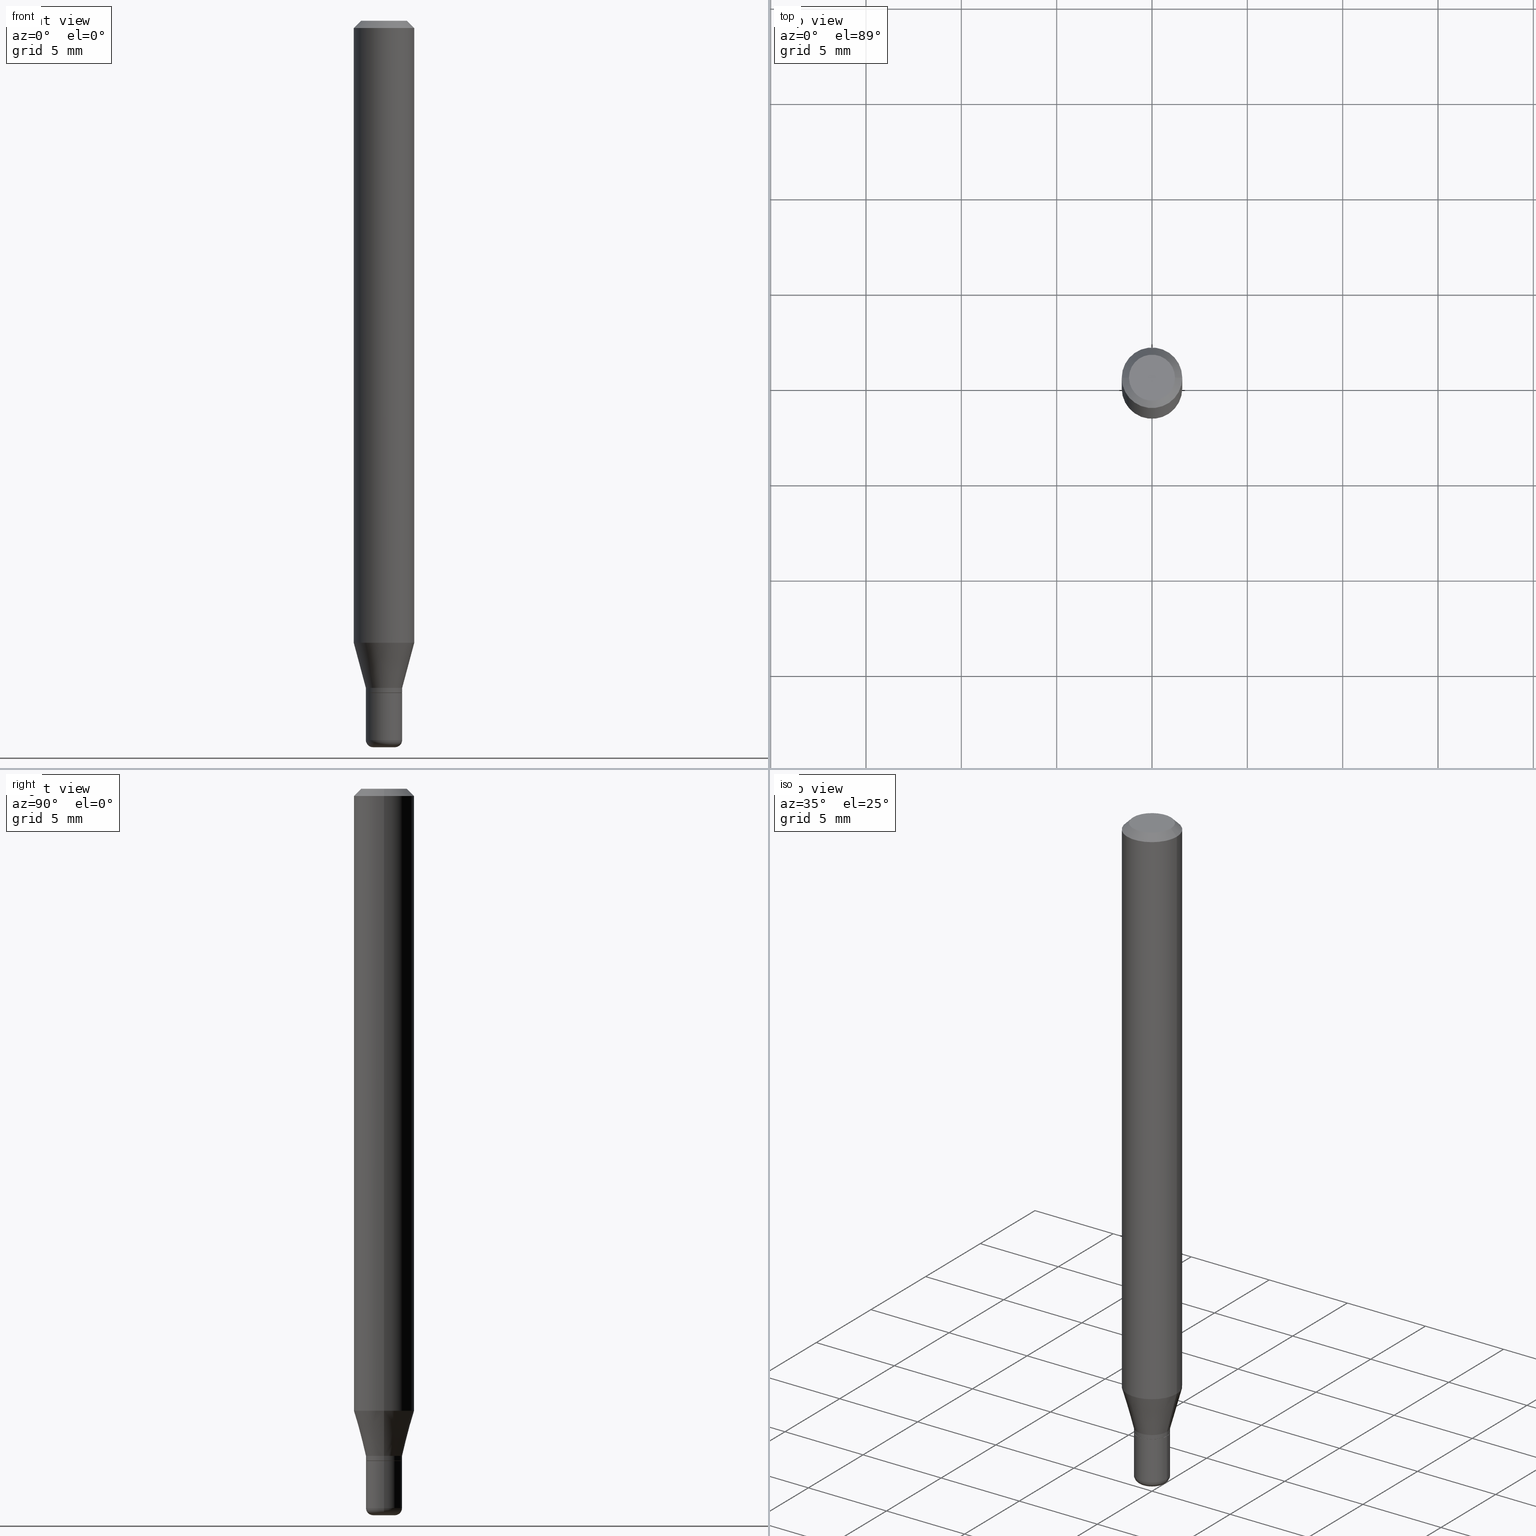
[diagram: canonical four-view strip — front | top / right | iso, engineering-drawing reading convention]
A machine part, canonical four-view strip (front | top / right | iso — engineering-drawing reading convention). The complete STEP part file that produces these views, byte-faithful:
ISO-10303-21;
HEADER;
FILE_DESCRIPTION (( 'STEP AP203' ),
    '1' );
FILE_NAME ('09180.STEP',
    '2024-02-29T23:03:46',
    ( '' ),
    ( '' ),
    'SwSTEP 2.0',
    'SolidWorks 2023',
    '' );
FILE_SCHEMA (( 'CONFIG_CONTROL_DESIGN' ));
ENDSEC;

DATA;
#1 = DIRECTION ( 'NONE',  ( 1.000000000000000000, -6.982962677686266711E-15, 4.876176775795935793E-29 ) ) ;
#2 = ORIENTED_EDGE ( 'NONE', *, *, #321, .F. ) ;
#3 = EDGE_CURVE ( 'NONE', #268, #397, #286, .T. ) ;
#4 = ORIENTED_EDGE ( 'NONE', *, *, #448, .T. ) ;
#5 = AXIS2_PLACEMENT_3D ( 'NONE', #476, #66, #124 ) ;
#6 = VECTOR ( 'NONE', #492, 39.37007874015748143 ) ;
#7 = AXIS2_PLACEMENT_3D ( 'NONE', #380, #429, #418 ) ;
#8 = ORIENTED_EDGE ( 'NONE', *, *, #173, .T. ) ;
#9 = ORIENTED_EDGE ( 'NONE', *, *, #304, .T. ) ;
#10 = EDGE_CURVE ( 'NONE', #397, #241, #246, .T. ) ;
#11 = CIRCLE ( 'NONE', #368, 0.02250000000000000264 ) ;
#12 = CARTESIAN_POINT ( 'NONE',  ( 0.000000000000000000, 0.000000000000000000, 0.000000000000000000 ) ) ;
#13 = DIRECTION ( 'NONE',  ( 1.000000000000000000, -6.982962677686266711E-15, 4.876176775795935793E-29 ) ) ;
#14 = DIRECTION ( 'NONE',  ( -0.7071067811866199593, 7.493145998870616062E-15, 0.7071067811864750752 ) ) ;
#15 = EDGE_CURVE ( 'NONE', #130, #268, #41, .T. ) ;
#16 = DIRECTION ( 'NONE',  ( -2.445468806185136597E-29, 3.491481338843145583E-15, 1.000000000000000000 ) ) ;
#17 = AXIS2_PLACEMENT_3D ( 'NONE', #243, #35, #156 ) ;
#18 = CC_DESIGN_APPROVAL ( #121, ( #277 ) ) ;
#19 = CARTESIAN_POINT ( 'NONE',  ( -0.06250000000000000000, 3.840629472727455270E-16, -0.01499999999999970281 ) ) ;
#20 = CARTESIAN_POINT ( 'NONE',  ( 0.02249999999999999917, -5.341966448430012335E-15, -1.485000000000000098 ) ) ;
#21 = DIRECTION ( 'NONE',  ( -2.445468806185136877E-29, 3.491481338843145188E-15, 1.000000000000000000 ) ) ;
#22 = PERSON_AND_ORGANIZATION ( #142, #516 ) ;
#23 = ORIENTED_EDGE ( 'NONE', *, *, #3, .T. ) ;
#24 = DIRECTION ( 'NONE',  ( 1.000000000000000000, -6.982962677686266711E-15, 4.876176775795935793E-29 ) ) ;
#25 = CALENDAR_DATE ( 2024, 29, 2 ) ;
#26 = EDGE_LOOP ( 'NONE', ( #168, #518 ) ) ;
#27 = CIRCLE ( 'NONE', #341, 0.04750000000000000749 ) ;
#28 = AXIS2_PLACEMENT_3D ( 'NONE', #199, #32, #466 ) ;
#29 = DIRECTION ( 'NONE',  ( 1.000000000000000000, -6.982962677686267499E-15, 0.000000000000000000 ) ) ;
#30 = APPROVAL_STATUS ( 'not_yet_approved' ) ;
#31 = ORIENTED_EDGE ( 'NONE', *, *, #93, .F. ) ;
#32 = DIRECTION ( 'NONE',  ( -2.445468806185136597E-29, 3.491481338843145583E-15, 1.000000000000000000 ) ) ;
#33 = CARTESIAN_POINT ( 'NONE',  ( 0.000000000000000000, 0.000000000000000000, 0.000000000000000000 ) ) ;
#34 = EDGE_CURVE ( 'NONE', #289, #397, #411, .T. ) ;
#35 = DIRECTION ( 'NONE',  ( -2.445468806185136597E-29, 3.491481338843145583E-15, 1.000000000000000000 ) ) ;
#36 = COORDINATED_UNIVERSAL_TIME_OFFSET ( 5, 0, .BEHIND. ) ;
#37 = ORIENTED_EDGE ( 'NONE', *, *, #335, .F. ) ;
#38 = AXIS2_PLACEMENT_3D ( 'NONE', #91, #342, #421 ) ;
#39 = CIRCLE ( 'NONE', #7, 0.03749999999999999167 ) ;
#40 = DIRECTION ( 'NONE',  ( -1.000000000000000000, 6.982962677686266711E-15, 0.000000000000000000 ) ) ;
#41 = LINE ( 'NONE', #169, #6 ) ;
#42 = ORIENTED_EDGE ( 'NONE', *, *, #93, .T. ) ;
#43 = EDGE_LOOP ( 'NONE', ( #172, #196, #64, #37 ) ) ;
#44 = VECTOR ( 'NONE', #470, 39.37007874015748143 ) ;
#45 = LOCAL_TIME ( 18, 3, 46.00000000000000000, #107 ) ;
#46 = ORIENTED_EDGE ( 'NONE', *, *, #253, .F. ) ;
#47 = APPROVAL ( #30, 'UNSPECIFIED' ) ;
#48 = CARTESIAN_POINT ( 'NONE',  ( 0.04750000000000000749, -4.035134999187568762E-16, 2.731847993664288856E-16 ) ) ;
#49 = CLOSED_SHELL ( 'NONE', ( #407, #294, #489, #62, #104, #290 ) ) ;
#50 = CONICAL_SURFACE ( 'NONE', #97, 0.03749999999999999861, 0.2617993877991490193 ) ;
#51 =( CONVERSION_BASED_UNIT ( 'INCH', #92 ) LENGTH_UNIT ( ) NAMED_UNIT ( #116 ) );
#52 = CARTESIAN_POINT ( 'NONE',  ( -0.03749999999999999861, -4.748186547003430777E-15, -1.387500000000000178 ) ) ;
#53 = ADVANCED_FACE ( 'NONE', ( #366 ), #419, .T. ) ;
#54 = FACE_OUTER_BOUND ( 'NONE', #478, .T. ) ;
#55 = CARTESIAN_POINT ( 'NONE',  ( 3.668203209277632395E-31, -5.237222008264614861E-17, -0.01499999999999970281 ) ) ;
#56 = CARTESIAN_POINT ( 'NONE',  ( 3.393087968581877252E-29, -4.844430357644865674E-15, -1.387500000000000178 ) ) ;
#57 = AXIS2_PLACEMENT_3D ( 'NONE', #390, #401, #111 ) ;
#58 = DIRECTION ( 'NONE',  ( 1.000000000000000000, -6.982962677686268288E-15, 0.000000000000000000 ) ) ;
#59 = CIRCLE ( 'NONE', #332, 0.03749999999999999167 ) ;
#60 = DIRECTION ( 'NONE',  ( -2.445468806185136597E-29, 3.491481338843145583E-15, 1.000000000000000000 ) ) ;
#61 = EDGE_LOOP ( 'NONE', ( #441, #355, #436, #190 ) ) ;
#62 = ADVANCED_FACE ( 'NONE', ( #350 ), #479, .T. ) ;
#63 = CARTESIAN_POINT ( 'NONE',  ( 3.668203209277704895E-29, -5.237222008264718177E-15, -1.500000000000000222 ) ) ;
#64 = ORIENTED_EDGE ( 'NONE', *, *, #10, .T. ) ;
#65 = DIRECTION ( 'NONE',  ( 1.000000000000000000, -6.982962677686268288E-15, 0.000000000000000000 ) ) ;
#66 = DIRECTION ( 'NONE',  ( -2.445468806185136597E-29, 3.491481338843145583E-15, 1.000000000000000000 ) ) ;
#67 = PERSON_AND_ORGANIZATION ( #142, #516 ) ;
#68 = ORIENTED_EDGE ( 'NONE', *, *, #141, .F. ) ;
#69 = AXIS2_PLACEMENT_3D ( 'NONE', #315, #161, #483 ) ;
#70 = CARTESIAN_POINT ( 'NONE',  ( 0.06250000000000000000, -4.888073874380378612E-16, -0.01499999999999970281 ) ) ;
#71 = AXIS2_PLACEMENT_3D ( 'NONE', #512, #402, #203 ) ;
#72 = DIRECTION ( 'NONE',  ( -2.445468806185136597E-29, 3.491481338843145583E-15, 1.000000000000000000 ) ) ;
#73 = ADVANCED_FACE ( 'NONE', ( #446 ), #394, .T. ) ;
#74 = PERSON_AND_ORGANIZATION ( #142, #516 ) ;
#75 = VERTEX_POINT ( 'NONE', #439 ) ;
#76 = PRODUCT_DEFINITION_SHAPE ( 'NONE', 'NONE',  #86 ) ;
#77 = DIRECTION ( 'NONE',  ( -2.445468806185136877E-29, 3.491481338843145188E-15, 1.000000000000000000 ) ) ;
#78 = LINE ( 'NONE', #127, #44 ) ;
#79 = APPROVAL_DATE_TIME ( #195, #491 ) ;
#80 = ORIENTED_EDGE ( 'NONE', *, *, #298, .T. ) ;
#81 = CARTESIAN_POINT ( 'NONE',  ( 3.668203209277632395E-31, -5.237222008264614861E-17, -0.01499999999999970281 ) ) ;
#82 = CARTESIAN_POINT ( 'NONE',  ( 0.06250000000000000000, -4.364351673553916694E-16, 3.047610484872459871E-30 ) ) ;
#83 = AXIS2_PLACEMENT_3D ( 'NONE', #220, #94, #263 ) ;
#84 = EDGE_LOOP ( 'NONE', ( #295, #42, #131, #445 ) ) ;
#85 = ORIENTED_EDGE ( 'NONE', *, *, #448, .F. ) ;
#86 = PRODUCT_DEFINITION ( 'UNKNOWN', '', #206, #412 ) ;
#87 = EDGE_LOOP ( 'NONE', ( #248, #9, #158, #388 ) ) ;
#88 = AXIS2_PLACEMENT_3D ( 'NONE', #354, #72, #361 ) ;
#89 = CIRCLE ( 'NONE', #197, 0.03749999999999999861 ) ;
#90 = ADVANCED_FACE ( 'NONE', ( #288 ), #284, .T. ) ;
#91 = CARTESIAN_POINT ( 'NONE',  ( 3.393087968581877252E-29, -4.844430357644865674E-15, -1.387500000000000178 ) ) ;
#92 = LENGTH_MEASURE_WITH_UNIT ( LENGTH_MEASURE( 0.02539999999999999897 ), #219 );
#93 = EDGE_CURVE ( 'NONE', #123, #488, #511, .T. ) ;
#94 = DIRECTION ( 'NONE',  ( 2.438088387897960049E-29, -3.491481338843145188E-15, -1.000000000000000000 ) ) ;
#95 = CARTESIAN_POINT ( 'NONE',  ( -0.03749999999999999861, -4.543062018346396613E-15, -1.377500000000000169 ) ) ;
#96 = CIRCLE ( 'NONE', #69, 0.06250000000000000000 ) ;
#97 = AXIS2_PLACEMENT_3D ( 'NONE', #136, #60, #177 ) ;
#98 = CARTESIAN_POINT ( 'NONE',  ( 3.668203209277632395E-31, -5.237222008264614861E-17, -0.01499999999999970281 ) ) ;
#99 = CARTESIAN_POINT ( 'NONE',  ( 3.668203209277704895E-29, -5.237222008264718177E-15, -1.500000000000000222 ) ) ;
#100 = DIRECTION ( 'NONE',  ( 1.000000000000000000, -6.982962677686268288E-15, 0.000000000000000000 ) ) ;
#101 = PLANE ( 'NONE',  #83 ) ;
#102 = FACE_OUTER_BOUND ( 'NONE', #455, .T. ) ;
#103 = DIRECTION ( 'NONE',  ( 1.000000000000000000, -6.982962677686268288E-15, 0.000000000000000000 ) ) ;
#104 = ADVANCED_FACE ( 'NONE', ( #358 ), #465, .T. ) ;
#105 = AXIS2_PLACEMENT_3D ( 'NONE', #432, #148, #314 ) ;
#106 = CARTESIAN_POINT ( 'NONE',  ( 0.02250000000000000264, -5.394338668512659809E-15, -1.500000000000000222 ) ) ;
#107 = COORDINATED_UNIVERSAL_TIME_OFFSET ( 5, 0, .BEHIND. ) ;
#108 = ORIENTED_EDGE ( 'NONE', *, *, #15, .T. ) ;
#109 = DIRECTION ( 'NONE',  ( 1.000000000000000000, -6.982962677686269866E-15, 0.000000000000000000 ) ) ;
#110 = ADVANCED_FACE ( 'NONE', ( #230 ), #276, .T. ) ;
#111 = DIRECTION ( 'NONE',  ( 1.000000000000000000, -6.982962677686266711E-15, 4.876176775795935793E-29 ) ) ;
#112 = DATE_TIME_ROLE ( 'creation_date' ) ;
#113 = ORIENTED_EDGE ( 'NONE', *, *, #304, .F. ) ;
#114 = ADVANCED_FACE ( 'NONE', ( #208 ), #337, .T. ) ;
#115 = CARTESIAN_POINT ( 'NONE',  ( 0.03749999999999999167, -5.104545717388679172E-15, -1.387000000000000233 ) ) ;
#116 = DIMENSIONAL_EXPONENTS ( 1.000000000000000000, 0.000000000000000000, 0.000000000000000000, 0.000000000000000000, 0.000000000000000000, 0.000000000000000000, 0.000000000000000000 ) ;
#117 = PERSON_AND_ORGANIZATION ( #142, #516 ) ;
#118 = ORIENTED_EDGE ( 'NONE', *, *, #347, .T. ) ;
#119 = CIRCLE ( 'NONE', #384, 0.03749999999999999861 ) ;
#120 = DIRECTION ( 'NONE',  ( 2.445468806185136597E-29, -3.491481338843145583E-15, -1.000000000000000000 ) ) ;
#121 = APPROVAL ( #440, 'UNSPECIFIED' ) ;
#122 = CALENDAR_DATE ( 2024, 29, 2 ) ;
#123 = VERTEX_POINT ( 'NONE', #506 ) ;
#124 = DIRECTION ( 'NONE',  ( 1.000000000000000000, -6.982962677686270655E-15, 4.883557194083114583E-29 ) ) ;
#125 = DATE_AND_TIME ( #236, #343 ) ;
#126 = ORIENTED_EDGE ( 'NONE', *, *, #494, .T. ) ;
#127 = CARTESIAN_POINT ( 'NONE',  ( 0.03749999999999999167, -2.618611004132349523E-16, 1.828566290923475572E-30 ) ) ;
#128 = ORIENTED_EDGE ( 'NONE', *, *, #347, .F. ) ;
#129 = VERTEX_POINT ( 'NONE', #115 ) ;
#130 = VERTEX_POINT ( 'NONE', #192 ) ;
#131 = ORIENTED_EDGE ( 'NONE', *, *, #377, .F. ) ;
#132 = VECTOR ( 'NONE', #245, 39.37007874015748143 ) ;
#133 = APPROVAL_PERSON_ORGANIZATION ( #282, #491, #473 ) ;
#134 = CARTESIAN_POINT ( 'NONE',  ( 3.368633280520026267E-29, -4.809515544256434025E-15, -1.377500000000000169 ) ) ;
#135 = DIRECTION ( 'NONE',  ( -2.445468806185136597E-29, 3.491481338843145583E-15, 1.000000000000000000 ) ) ;
#136 = CARTESIAN_POINT ( 'NONE',  ( 3.368633280520026267E-29, -4.809515544256434025E-15, -1.377500000000000169 ) ) ;
#137 = AXIS2_PLACEMENT_3D ( 'NONE', #280, #365, #443 ) ;
#138 = CC_DESIGN_APPROVAL ( #47, ( #86 ) ) ;
#139 = DIRECTION ( 'NONE',  ( 1.000000000000000000, -6.982962677686266711E-15, 4.852736867747365086E-29 ) ) ;
#140 = DIRECTION ( 'NONE',  ( 1.000000000000000000, -6.982962677686266711E-15, 4.852736867747365086E-29 ) ) ;
#141 = EDGE_CURVE ( 'NONE', #364, #268, #96, .T. ) ;
#142 = PERSON ( 'UNSPECIFIED', 'UNSPECIFIED', 'UNSPECIFIED', ('UNSPECIFIED'), ('UNSPECIFIED'), ('UNSPECIFIED') ) ;
#143 = DIRECTION ( 'NONE',  ( -2.445468806185136597E-29, 3.491481338843145583E-15, 1.000000000000000000 ) ) ;
#144 = CARTESIAN_POINT ( 'NONE',  ( 3.393087968581877252E-29, -4.844430357644865674E-15, -1.387500000000000178 ) ) ;
#145 = VECTOR ( 'NONE', #340, 39.37007874015748143 ) ;
#146 = APPROVAL_ROLE ( '' ) ;
#147 = ORIENTED_EDGE ( 'NONE', *, *, #166, .F. ) ;
#148 = DIRECTION ( 'NONE',  ( -2.445468806185136597E-29, 3.491481338843145583E-15, 1.000000000000000000 ) ) ;
#149 = CARTESIAN_POINT ( 'NONE',  ( 0.000000000000000000, 0.000000000000000000, 0.000000000000000000 ) ) ;
#150 = PRODUCT ( '09180', '09180', '', ( #435 ) ) ;
#151 = EDGE_LOOP ( 'NONE', ( #201, #46, #471, #452 ) ) ;
#152 = ADVANCED_BREP_SHAPE_REPRESENTATION ( '09180', ( #300, #469, #71 ), #233 ) ;
#153 = DIRECTION ( 'NONE',  ( 1.000000000000000000, -6.982962677686265922E-15, 4.876176775795935793E-29 ) ) ;
#154 = CARTESIAN_POINT ( 'NONE',  ( -0.03749999999999999861, 2.664535259100375598E-16, -1.844600658845589458E-30 ) ) ;
#155 = VERTEX_POINT ( 'NONE', #165 ) ;
#156 = DIRECTION ( 'NONE',  ( 1.000000000000000000, -6.982962677686268288E-15, 0.000000000000000000 ) ) ;
#157 = APPROVAL_ROLE ( '' ) ;
#158 = ORIENTED_EDGE ( 'NONE', *, *, #425, .T. ) ;
#159 = VECTOR ( 'NONE', #484, 39.37007874015748143 ) ;
#160 = VECTOR ( 'NONE', #381, 39.37007874015748143 ) ;
#161 = DIRECTION ( 'NONE',  ( -2.445468806185136597E-29, 3.491481338843145583E-15, 1.000000000000000000 ) ) ;
#162 = CALENDAR_DATE ( 2024, 29, 2 ) ;
#163 = EDGE_LOOP ( 'NONE', ( #80, #250, #485, #85 ) ) ;
#164 = CARTESIAN_POINT ( 'NONE',  ( -0.03749999999999999167, -4.748186547003430777E-15, -1.485000000000000098 ) ) ;
#165 = CARTESIAN_POINT ( 'NONE',  ( -0.04750000000000000749, 3.578768372314221353E-16, 2.731847993664239060E-16 ) ) ;
#166 = EDGE_CURVE ( 'NONE', #75, #403, #78, .T. ) ;
#167 = UNCERTAINTY_MEASURE_WITH_UNIT (LENGTH_MEASURE( 1.000000000000000082E-05 ), #51, 'distance_accuracy_value', 'NONE');
#168 = ORIENTED_EDGE ( 'NONE', *, *, #253, .T. ) ;
#169 = CARTESIAN_POINT ( 'NONE',  ( 0.03749999999999999861, -5.071376644669669027E-15, -1.377500000000000169 ) ) ;
#170 = CIRCLE ( 'NONE', #214, 0.03749999999999999861 ) ;
#171 = AXIS2_PLACEMENT_3D ( 'NONE', #463, #501, #140 ) ;
#172 = ORIENTED_EDGE ( 'NONE', *, *, #433, .F. ) ;
#173 = EDGE_CURVE ( 'NONE', #268, #364, #205, .T. ) ;
#174 = DIRECTION ( 'NONE',  ( -2.445468806185136877E-29, 3.491481338843145188E-15, 1.000000000000000000 ) ) ;
#175 = VECTOR ( 'NONE', #174, 39.37007874015748143 ) ;
#176 = AXIS2_PLACEMENT_3D ( 'NONE', #422, #143, #13 ) ;
#177 = DIRECTION ( 'NONE',  ( 1.000000000000000000, -6.982962677686268288E-15, 0.000000000000000000 ) ) ;
#178 = DIRECTION ( 'NONE',  ( -1.000000000000000000, 6.982962677686265922E-15, -4.876176775795935793E-29 ) ) ;
#179 = CARTESIAN_POINT ( 'NONE',  ( 0.06250000000000000000, -4.920191067855794599E-15, -1.284198729810778206 ) ) ;
#180 =( NAMED_UNIT ( * ) SI_UNIT ( $, .STERADIAN. ) SOLID_ANGLE_UNIT ( ) );
#181 = EDGE_CURVE ( 'NONE', #400, #474, #11, .T. ) ;
#182 = AXIS2_PLACEMENT_3D ( 'NONE', #217, #424, #379 ) ;
#183 = APPROVAL_PERSON_ORGANIZATION ( #74, #121, #146 ) ;
#184 = DIRECTION ( 'NONE',  ( -2.445468806185136597E-29, 3.491481338843145583E-15, 1.000000000000000000 ) ) ;
#185 = ADVANCED_FACE ( 'NONE', ( #239 ), #517, .T. ) ;
#186 = DIRECTION ( 'NONE',  ( -1.000000000000000000, 7.105427357600996337E-15, 0.000000000000000000 ) ) ;
#187 = CARTESIAN_POINT ( 'NONE',  ( 0.03699999999999999123, -5.102799976719256880E-15, -1.387500000000000178 ) ) ;
#188 = DIRECTION ( 'NONE',  ( 1.000000000000000000, -6.982962677686269866E-15, 0.000000000000000000 ) ) ;
#189 = DATE_TIME_ROLE ( 'classification_date' ) ;
#190 = ORIENTED_EDGE ( 'NONE', *, *, #425, .F. ) ;
#191 = CARTESIAN_POINT ( 'NONE',  ( 3.631521177184928138E-29, -5.184849788182071492E-15, -1.485000000000000098 ) ) ;
#192 = CARTESIAN_POINT ( 'NONE',  ( 0.03749999999999999861, -5.071376644669669027E-15, -1.377500000000000169 ) ) ;
#193 = EDGE_CURVE ( 'NONE', #237, #75, #310, .T. ) ;
#194 = AXIS2_PLACEMENT_3D ( 'NONE', #33, #404, #322 ) ;
#195 = DATE_AND_TIME ( #25, #438 ) ;
#196 = ORIENTED_EDGE ( 'NONE', *, *, #34, .T. ) ;
#197 = AXIS2_PLACEMENT_3D ( 'NONE', #226, #387, #58 ) ;
#198 = DIRECTION ( 'NONE',  ( 1.000000000000000000, -6.982962677686269866E-15, 0.000000000000000000 ) ) ;
#199 = CARTESIAN_POINT ( 'NONE',  ( 3.393087968581877252E-29, -4.844430357644865674E-15, -1.387500000000000178 ) ) ;
#200 = DIRECTION ( 'NONE',  ( -2.445468806185136597E-29, 3.491481338843145583E-15, 1.000000000000000000 ) ) ;
#201 = ORIENTED_EDGE ( 'NONE', *, *, #34, .F. ) ;
#202 = DIRECTION ( 'NONE',  ( -2.445468806185136597E-29, 3.491481338843145583E-15, 1.000000000000000000 ) ) ;
#203 = DIRECTION ( 'NONE',  ( 1.000000000000000000, 0.000000000000000000, 0.000000000000000000 ) ) ;
#204 = ORIENTED_EDGE ( 'NONE', *, *, #15, .F. ) ;
#205 = CIRCLE ( 'NONE', #88, 0.06250000000000000000 ) ;
#206 = PRODUCT_DEFINITION_FORMATION_WITH_SPECIFIED_SOURCE ( 'ANY', '', #150, .NOT_KNOWN. ) ;
#207 = EDGE_CURVE ( 'NONE', #237, #329, #508, .T. ) ;
#208 = FACE_OUTER_BOUND ( 'NONE', #415, .T. ) ;
#209 = ORIENTED_EDGE ( 'NONE', *, *, #210, .T. ) ;
#210 = EDGE_CURVE ( 'NONE', #129, #130, #235, .T. ) ;
#211 = CARTESIAN_POINT ( 'NONE',  ( 3.668203209277632395E-31, -5.237222008264614861E-17, -0.01499999999999970281 ) ) ;
#212 = EDGE_CURVE ( 'NONE', #488, #364, #327, .T. ) ;
#213 = VERTEX_POINT ( 'NONE', #187 ) ;
#214 = AXIS2_PLACEMENT_3D ( 'NONE', #134, #462, #103 ) ;
#215 = CC_DESIGN_APPROVAL ( #491, ( #206 ) ) ;
#216 = ORIENTED_EDGE ( 'NONE', *, *, #207, .F. ) ;
#217 = CARTESIAN_POINT ( 'NONE',  ( 3.582686580359766038E-29, -5.359686688179453325E-15, -1.500000000000000222 ) ) ;
#218 = CARTESIAN_POINT ( 'NONE',  ( 2.618611004132689227E-16, 0.03749999999999515526, -1.387500000000000178 ) ) ;
#219 =( LENGTH_UNIT ( ) NAMED_UNIT ( * ) SI_UNIT ( $, .METRE. ) );
#220 = CARTESIAN_POINT ( 'NONE',  ( 3.316907271900976589E-16, 0.04750000000000000749, -2.925296391183627249E-17 ) ) ;
#221 = AXIS2_PLACEMENT_3D ( 'NONE', #472, #200, #24 ) ;
#222 = VECTOR ( 'NONE', #77, 39.37007874015748143 ) ;
#223 = CARTESIAN_POINT ( 'NONE',  ( 0.03699999999999999123, -5.102799976719256880E-15, -1.387500000000000178 ) ) ;
#224 = FACE_OUTER_BOUND ( 'NONE', #43, .T. ) ;
#225 = EDGE_LOOP ( 'NONE', ( #353, #2 ) ) ;
#226 = CARTESIAN_POINT ( 'NONE',  ( 3.393087968581877252E-29, -4.844430357644865674E-15, -1.387500000000000178 ) ) ;
#227 = DIRECTION ( 'NONE',  ( -2.445468806185136597E-29, 3.491481338843145583E-15, 1.000000000000000000 ) ) ;
#228 = ORIENTED_EDGE ( 'NONE', *, *, #212, .T. ) ;
#229 = DIRECTION ( 'NONE',  ( -2.445468806185136597E-29, 3.491481338843145583E-15, 1.000000000000000000 ) ) ;
#230 = FACE_OUTER_BOUND ( 'NONE', #151, .T. ) ;
#231 = PERSON_AND_ORGANIZATION_ROLE ( 'creator' ) ;
#232 = ORIENTED_EDGE ( 'NONE', *, *, #3, .F. ) ;
#233 =( GEOMETRIC_REPRESENTATION_CONTEXT ( 3 ) GLOBAL_UNCERTAINTY_ASSIGNED_CONTEXT ( ( #167 ) ) GLOBAL_UNIT_ASSIGNED_CONTEXT ( ( #51, #303, #180 ) ) REPRESENTATION_CONTEXT ( 'NONE', 'WORKASPACE' ) );
#234 = CARTESIAN_POINT ( 'NONE',  ( 3.368633280520026267E-29, -4.809515544256434025E-15, -1.377500000000000169 ) ) ;
#235 = LINE ( 'NONE', #398, #393 ) ;
#236 = CALENDAR_DATE ( 2024, 29, 2 ) ;
#237 = VERTEX_POINT ( 'NONE', #164 ) ;
#238 = FACE_OUTER_BOUND ( 'NONE', #225, .T. ) ;
#239 = FACE_OUTER_BOUND ( 'NONE', #373, .T. ) ;
#240 = PERSON_AND_ORGANIZATION_ROLE ( 'design_supplier' ) ;
#241 = VERTEX_POINT ( 'NONE', #453 ) ;
#242 = ADVANCED_FACE ( 'NONE', ( #265 ), #101, .F. ) ;
#243 = CARTESIAN_POINT ( 'NONE',  ( 3.368633280520026267E-29, -4.809515544256434025E-15, -1.377500000000000169 ) ) ;
#244 = APPROVAL_DATE_TIME ( #125, #121 ) ;
#245 = DIRECTION ( 'NONE',  ( 0.7071067811865479058, -7.319954787623257623E-15, -0.7071067811865471286 ) ) ;
#246 = CIRCLE ( 'NONE', #427, 0.06250000000000000000 ) ;
#247 = AXIS2_PLACEMENT_3D ( 'NONE', #98, #255, #338 ) ;
#248 = ORIENTED_EDGE ( 'NONE', *, *, #339, .F. ) ;
#249 = EDGE_CURVE ( 'NONE', #488, #130, #170, .T. ) ;
#250 = ORIENTED_EDGE ( 'NONE', *, *, #281, .T. ) ;
#251 = ORIENTED_EDGE ( 'NONE', *, *, #249, .T. ) ;
#252 = AXIS2_PLACEMENT_3D ( 'NONE', #56, #135, #458 ) ;
#253 = EDGE_CURVE ( 'NONE', #155, #289, #27, .T. ) ;
#254 = LINE ( 'NONE', #19, #145 ) ;
#255 = DIRECTION ( 'NONE',  ( 2.445468806185136597E-29, -3.491481338843145583E-15, -1.000000000000000000 ) ) ;
#256 = DIRECTION ( 'NONE',  ( 1.000000000000000000, -6.982962677686266711E-15, 0.000000000000000000 ) ) ;
#257 = AXIS2_PLACEMENT_3D ( 'NONE', #272, #202, #198 ) ;
#258 = AXIS2_PLACEMENT_3D ( 'NONE', #218, #267, #178 ) ;
#259 = DIRECTION ( 'NONE',  ( -6.982962677686266711E-15, -1.000000000000000000, 3.491481338843145583E-15 ) ) ;
#260 = CARTESIAN_POINT ( 'NONE',  ( -0.02249999999999999917, -5.024977672636049203E-15, -1.485000000000000098 ) ) ;
#261 = EDGE_CURVE ( 'NONE', #241, #397, #414, .T. ) ;
#262 = APPLICATION_PROTOCOL_DEFINITION ( 'international standard', 'config_control_design', 1994, #408 ) ;
#263 = DIRECTION ( 'NONE',  ( -1.000000000000000000, 6.982962677686265922E-15, -4.876176775795935793E-29 ) ) ;
#264 = PLANE ( 'NONE',  #258 ) ;
#265 = FACE_OUTER_BOUND ( 'NONE', #26, .T. ) ;
#266 = CIRCLE ( 'NONE', #38, 0.03699999999999999123 ) ;
#267 = DIRECTION ( 'NONE',  ( 2.438088387897960049E-29, -3.491481338843145188E-15, -1.000000000000000000 ) ) ;
#268 = VERTEX_POINT ( 'NONE', #179 ) ;
#269 = FACE_OUTER_BOUND ( 'NONE', #61, .T. ) ;
#270 = EDGE_LOOP ( 'NONE', ( #316, #430, #313, #147 ) ) ;
#271 = CARTESIAN_POINT ( 'NONE',  ( 0.03749999999999999861, -5.106291458058100676E-15, -1.387500000000000178 ) ) ;
#272 = CARTESIAN_POINT ( 'NONE',  ( 3.631521177184928138E-29, -5.184849788182071492E-15, -1.485000000000000098 ) ) ;
#273 = DATE_AND_TIME ( #481, #428 ) ;
#274 = ORIENTED_EDGE ( 'NONE', *, *, #377, .T. ) ;
#275 = DIRECTION ( 'NONE',  ( -2.445468806185136877E-29, 3.491481338843145188E-15, 1.000000000000000000 ) ) ;
#276 = CONICAL_SURFACE ( 'NONE', #331, 0.06250000000000000000, 0.7853981633974488341 ) ;
#277 = SECURITY_CLASSIFICATION ( '', '', #278 ) ;
#278 = SECURITY_CLASSIFICATION_LEVEL ( 'unclassified' ) ;
#279 = ORIENTED_EDGE ( 'NONE', *, *, #480, .T. ) ;
#280 = CARTESIAN_POINT ( 'NONE',  ( 3.393087968581877252E-29, -4.844430357644865674E-15, -1.387500000000000178 ) ) ;
#281 = EDGE_CURVE ( 'NONE', #406, #123, #423, .T. ) ;
#282 = PERSON_AND_ORGANIZATION ( #142, #516 ) ;
#283 = ORIENTED_EDGE ( 'NONE', *, *, #181, .F. ) ;
#284 = CYLINDRICAL_SURFACE ( 'NONE', #382, 0.03749999999999999861 ) ;
#285 = PERSON_AND_ORGANIZATION_ROLE ( 'creator' ) ;
#286 = LINE ( 'NONE', #82, #175 ) ;
#287 = CC_DESIGN_DATE_AND_TIME_ASSIGNMENT ( #318, #112, ( #86 ) ) ;
#288 = FACE_OUTER_BOUND ( 'NONE', #84, .T. ) ;
#289 = VERTEX_POINT ( 'NONE', #48 ) ;
#290 = ADVANCED_FACE ( 'NONE', ( #374 ), #461, .F. ) ;
#291 = TOROIDAL_SURFACE ( 'NONE', #105, 0.02249999999999999917, 0.01499999999999998904 ) ;
#292 = ORIENTED_EDGE ( 'NONE', *, *, #10, .F. ) ;
#293 = ORIENTED_EDGE ( 'NONE', *, *, #261, .F. ) ;
#294 = ADVANCED_FACE ( 'NONE', ( #306 ), #376, .T. ) ;
#295 = ORIENTED_EDGE ( 'NONE', *, *, #417, .T. ) ;
#296 = CIRCLE ( 'NONE', #252, 0.03699999999999999123 ) ;
#297 = CONICAL_SURFACE ( 'NONE', #28, 0.03699999999999999123, 0.7853981633975507526 ) ;
#298 = EDGE_CURVE ( 'NONE', #213, #406, #296, .T. ) ;
#299 = CARTESIAN_POINT ( 'NONE',  ( -6.680649051745406845E-45, 9.538196290434862081E-31, 2.731847993664263218E-16 ) ) ;
#300 = MANIFOLD_SOLID_BREP ( 'Body-Move/Copy2[1]', #49 ) ;
#301 = CC_DESIGN_PERSON_AND_ORGANIZATION_ASSIGNMENT ( #503, #240, ( #206 ) ) ;
#302 = DIRECTION ( 'NONE',  ( -2.445468806185136597E-29, 3.491481338843145583E-15, 1.000000000000000000 ) ) ;
#303 =( NAMED_UNIT ( * ) PLANE_ANGLE_UNIT ( ) SI_UNIT ( $, .RADIAN. ) );
#304 = EDGE_CURVE ( 'NONE', #474, #400, #362, .T. ) ;
#305 = CARTESIAN_POINT ( 'NONE',  ( -0.03699999999999999123, -4.581529545413628372E-15, -1.387500000000000178 ) ) ;
#306 = FACE_OUTER_BOUND ( 'NONE', #270, .T. ) ;
#307 = LINE ( 'NONE', #223, #160 ) ;
#308 = DIRECTION ( 'NONE',  ( 1.000000000000000000, -6.982962677686267499E-15, 0.000000000000000000 ) ) ;
#309 = CARTESIAN_POINT ( 'NONE',  ( -0.02250000000000000264, -4.997873077495366167E-15, -1.500000000000000222 ) ) ;
#310 = CIRCLE ( 'NONE', #257, 0.03749999999999999167 ) ;
#311 = AXIS2_PLACEMENT_3D ( 'NONE', #20, #259, #426 ) ;
#312 = COORDINATED_UNIVERSAL_TIME_OFFSET ( 5, 0, .BEHIND. ) ;
#313 = ORIENTED_EDGE ( 'NONE', *, *, #413, .F. ) ;
#314 = DIRECTION ( 'NONE',  ( 1.000000000000000000, -6.982962677686270655E-15, 4.883557194083114583E-29 ) ) ;
#315 = CARTESIAN_POINT ( 'NONE',  ( 3.140467934694832795E-29, -4.483755900500402930E-15, -1.284198729810778206 ) ) ;
#316 = ORIENTED_EDGE ( 'NONE', *, *, #386, .T. ) ;
#317 = CARTESIAN_POINT ( 'NONE',  ( -0.03749999999999999167, 2.664535259100375105E-16, -1.844600658845589458E-30 ) ) ;
#318 = DATE_AND_TIME ( #122, #45 ) ;
#319 = ORIENTED_EDGE ( 'NONE', *, *, #249, .F. ) ;
#320 = FACE_OUTER_BOUND ( 'NONE', #163, .T. ) ;
#321 = EDGE_CURVE ( 'NONE', #406, #213, #266, .T. ) ;
#322 = DIRECTION ( 'NONE',  ( 1.000000000000000000, -6.982962677686266711E-15, 4.876176775795935793E-29 ) ) ;
#323 = CONICAL_SURFACE ( 'NONE', #247, 0.06250000000000000000, 0.7853981633974488341 ) ;
#324 = APPROVAL_DATE_TIME ( #359, #47 ) ;
#325 = ORIENTED_EDGE ( 'NONE', *, *, #193, .T. ) ;
#326 = COORDINATED_UNIVERSAL_TIME_OFFSET ( 5, 0, .BEHIND. ) ;
#327 = LINE ( 'NONE', #95, #159 ) ;
#328 = DIRECTION ( 'NONE',  ( -2.445468806185136597E-29, 3.491481338843145583E-15, 1.000000000000000000 ) ) ;
#329 = VERTEX_POINT ( 'NONE', #52 ) ;
#330 = DIRECTION ( 'NONE',  ( 1.000000000000000000, -6.982962677686266711E-15, 0.000000000000000000 ) ) ;
#331 = AXIS2_PLACEMENT_3D ( 'NONE', #81, #120, #40 ) ;
#332 = AXIS2_PLACEMENT_3D ( 'NONE', #500, #344, #188 ) ;
#333 = ORIENTED_EDGE ( 'NONE', *, *, #173, .F. ) ;
#334 = ORIENTED_EDGE ( 'NONE', *, *, #480, .F. ) ;
#335 = EDGE_CURVE ( 'NONE', #155, #241, #254, .T. ) ;
#336 = CLOSED_SHELL ( 'NONE', ( #90, #395, #514, #185, #498, #53, #454, #110, #242, #356, #114, #73 ) ) ;
#337 = CONICAL_SURFACE ( 'NONE', #137, 0.03699999999999999123, 0.7853981633975507526 ) ;
#338 = DIRECTION ( 'NONE',  ( -1.000000000000000000, 6.982962677686266711E-15, 0.000000000000000000 ) ) ;
#339 = EDGE_CURVE ( 'NONE', #474, #237, #449, .T. ) ;
#340 = DIRECTION ( 'NONE',  ( -0.7071067811865479058, 2.468850131082261005E-15, -0.7071067811865471286 ) ) ;
#341 = AXIS2_PLACEMENT_3D ( 'NONE', #299, #16, #139 ) ;
#342 = DIRECTION ( 'NONE',  ( -2.445468806185136597E-29, 3.491481338843145583E-15, 1.000000000000000000 ) ) ;
#343 = LOCAL_TIME ( 18, 3, 46.00000000000000000, #396 ) ;
#344 = DIRECTION ( 'NONE',  ( -2.445468806185136597E-29, 3.491481338843145583E-15, 1.000000000000000000 ) ) ;
#345 = CYLINDRICAL_SURFACE ( 'NONE', #176, 0.06250000000000000000 ) ;
#346 = PLANE ( 'NONE',  #351 ) ;
#347 = EDGE_CURVE ( 'NONE', #364, #241, #437, .T. ) ;
#348 = PERSON_AND_ORGANIZATION_ROLE ( 'classification_officer' ) ;
#349 = ORIENTED_EDGE ( 'NONE', *, *, #281, .F. ) ;
#350 = FACE_OUTER_BOUND ( 'NONE', #490, .T. ) ;
#351 = AXIS2_PLACEMENT_3D ( 'NONE', #144, #505, #153 ) ;
#352 = PERSON_AND_ORGANIZATION ( #142, #516 ) ;
#353 = ORIENTED_EDGE ( 'NONE', *, *, #298, .F. ) ;
#354 = CARTESIAN_POINT ( 'NONE',  ( 3.140467934694832795E-29, -4.483755900500402930E-15, -1.284198729810778206 ) ) ;
#355 = ORIENTED_EDGE ( 'NONE', *, *, #339, .T. ) ;
#356 = ADVANCED_FACE ( 'NONE', ( #238 ), #346, .F. ) ;
#357 = CARTESIAN_POINT ( 'NONE',  ( -0.03699999999999999123, -4.578880318239517171E-15, -1.387500000000000178 ) ) ;
#358 = FACE_OUTER_BOUND ( 'NONE', #87, .T. ) ;
#359 = DATE_AND_TIME ( #162, #363 ) ;
#360 = EDGE_LOOP ( 'NONE', ( #31, #126, #209, #319 ) ) ;
#361 = DIRECTION ( 'NONE',  ( 1.000000000000000000, -6.982962677686262766E-15, 0.000000000000000000 ) ) ;
#362 = CIRCLE ( 'NONE', #493, 0.02250000000000000264 ) ;
#363 = LOCAL_TIME ( 18, 3, 46.00000000000000000, #36 ) ;
#364 = VERTEX_POINT ( 'NONE', #502 ) ;
#365 = DIRECTION ( 'NONE',  ( -2.445468806185136597E-29, 3.491481338843145583E-15, 1.000000000000000000 ) ) ;
#366 = FACE_OUTER_BOUND ( 'NONE', #507, .T. ) ;
#367 = DIRECTION ( 'NONE',  ( -2.445468806185136597E-29, 3.491481338843145583E-15, 1.000000000000000000 ) ) ;
#368 = AXIS2_PLACEMENT_3D ( 'NONE', #63, #227, #29 ) ;
#369 = ORIENTED_EDGE ( 'NONE', *, *, #166, .T. ) ;
#370 = APPROVAL_PERSON_ORGANIZATION ( #117, #47, #157 ) ;
#371 = PRODUCT_RELATED_PRODUCT_CATEGORY ( 'detail', '', ( #150 ) ) ;
#372 = CIRCLE ( 'NONE', #405, 0.03749999999999999167 ) ;
#373 = EDGE_LOOP ( 'NONE', ( #8, #118, #292, #232 ) ) ;
#374 = FACE_OUTER_BOUND ( 'NONE', #450, .T. ) ;
#375 = CC_DESIGN_PERSON_AND_ORGANIZATION_ASSIGNMENT ( #67, #285, ( #86 ) ) ;
#376 = CYLINDRICAL_SURFACE ( 'NONE', #515, 0.03749999999999999167 ) ;
#377 = EDGE_CURVE ( 'NONE', #130, #488, #119, .T. ) ;
#378 = CARTESIAN_POINT ( 'NONE',  ( -0.03749999999999999861, -4.291364354498368463E-15, -1.377500000000000169 ) ) ;
#379 = DIRECTION ( 'NONE',  ( 1.000000000000000000, -6.982962677686265922E-15, 4.876176775795935793E-29 ) ) ;
#380 = CARTESIAN_POINT ( 'NONE',  ( 3.391865234178785011E-29, -4.842684616975444171E-15, -1.387000000000000233 ) ) ;
#381 = DIRECTION ( 'NONE',  ( 0.7071067811866199593, -2.468850131083015945E-15, 0.7071067811864750752 ) ) ;
#382 = AXIS2_PLACEMENT_3D ( 'NONE', #149, #328, #1 ) ;
#383 = DIRECTION ( 'NONE',  ( 7.105427357601001859E-15, 1.000000000000000000, -3.491481338843145583E-15 ) ) ;
#384 = AXIS2_PLACEMENT_3D ( 'NONE', #234, #510, #65 ) ;
#385 = FACE_OUTER_BOUND ( 'NONE', #392, .T. ) ;
#386 = EDGE_CURVE ( 'NONE', #75, #237, #372, .T. ) ;
#387 = DIRECTION ( 'NONE',  ( -2.445468806185136597E-29, 3.491481338843145583E-15, 1.000000000000000000 ) ) ;
#388 = ORIENTED_EDGE ( 'NONE', *, *, #193, .F. ) ;
#389 = CC_DESIGN_PERSON_AND_ORGANIZATION_ASSIGNMENT ( #477, #391, ( #150 ) ) ;
#390 = CARTESIAN_POINT ( 'NONE',  ( 0.000000000000000000, 0.000000000000000000, 0.000000000000000000 ) ) ;
#391 = PERSON_AND_ORGANIZATION_ROLE ( 'design_owner' ) ;
#392 = EDGE_LOOP ( 'NONE', ( #128, #468, #23, #293 ) ) ;
#393 = VECTOR ( 'NONE', #21, 39.37007874015748143 ) ;
#394 = CYLINDRICAL_SURFACE ( 'NONE', #221, 0.03749999999999999861 ) ;
#395 = ADVANCED_FACE ( 'NONE', ( #320 ), #297, .T. ) ;
#396 = COORDINATED_UNIVERSAL_TIME_OFFSET ( 5, 0, .BEHIND. ) ;
#397 = VERTEX_POINT ( 'NONE', #70 ) ;
#398 = CARTESIAN_POINT ( 'NONE',  ( 0.03749999999999999861, -2.618611004132350016E-16, 1.828566290923475922E-30 ) ) ;
#399 = APPROVAL_STATUS ( 'not_yet_approved' ) ;
#400 = VERTEX_POINT ( 'NONE', #106 ) ;
#401 = DIRECTION ( 'NONE',  ( -2.445468806185136597E-29, 3.491481338843145583E-15, 1.000000000000000000 ) ) ;
#402 = DIRECTION ( 'NONE',  ( 0.000000000000000000, 0.000000000000000000, 1.000000000000000000 ) ) ;
#403 = VERTEX_POINT ( 'NONE', #271 ) ;
#404 = DIRECTION ( 'NONE',  ( -2.445468806185136597E-29, 3.491481338843145583E-15, 1.000000000000000000 ) ) ;
#405 = AXIS2_PLACEMENT_3D ( 'NONE', #191, #229, #109 ) ;
#406 = VERTEX_POINT ( 'NONE', #357 ) ;
#407 = ADVANCED_FACE ( 'NONE', ( #269 ), #291, .T. ) ;
#408 = APPLICATION_CONTEXT ( 'configuration controlled 3d designs of mechanical parts and assemblies' ) ;
#409 = ORIENTED_EDGE ( 'NONE', *, *, #212, .F. ) ;
#410 = CC_DESIGN_PERSON_AND_ORGANIZATION_ASSIGNMENT ( #22, #348, ( #277 ) ) ;
#411 = LINE ( 'NONE', #447, #132 ) ;
#412 = DESIGN_CONTEXT ( 'detailed design', #459, 'design' ) ;
#413 = EDGE_CURVE ( 'NONE', #403, #329, #89, .T. ) ;
#414 = CIRCLE ( 'NONE', #456, 0.06250000000000000000 ) ;
#415 = EDGE_LOOP ( 'NONE', ( #349, #482, #4, #509 ) ) ;
#416 = CC_DESIGN_SECURITY_CLASSIFICATION ( #277, ( #206 ) ) ;
#417 = EDGE_CURVE ( 'NONE', #129, #123, #59, .T. ) ;
#418 = DIRECTION ( 'NONE',  ( 1.000000000000000000, -6.982962677686269866E-15, 0.000000000000000000 ) ) ;
#419 = CONICAL_SURFACE ( 'NONE', #17, 0.03749999999999999861, 0.2617993877991490193 ) ;
#420 = CIRCLE ( 'NONE', #311, 0.01499999999999998904 ) ;
#421 = DIRECTION ( 'NONE',  ( 1.000000000000000000, -6.982962677686255667E-15, 0.000000000000000000 ) ) ;
#422 = CARTESIAN_POINT ( 'NONE',  ( 0.000000000000000000, 0.000000000000000000, 0.000000000000000000 ) ) ;
#423 = LINE ( 'NONE', #305, #475 ) ;
#424 = DIRECTION ( 'NONE',  ( -2.438088387897960049E-29, 3.491481338843145188E-15, 1.000000000000000000 ) ) ;
#425 = EDGE_CURVE ( 'NONE', #400, #75, #420, .T. ) ;
#426 = DIRECTION ( 'NONE',  ( 1.000000000000000000, -6.982962677686273021E-15, 0.000000000000000000 ) ) ;
#427 = AXIS2_PLACEMENT_3D ( 'NONE', #211, #367, #330 ) ;
#428 = LOCAL_TIME ( 18, 3, 46.00000000000000000, #312 ) ;
#429 = DIRECTION ( 'NONE',  ( -2.445468806185136597E-29, 3.491481338843145583E-15, 1.000000000000000000 ) ) ;
#430 = ORIENTED_EDGE ( 'NONE', *, *, #207, .T. ) ;
#431 = CC_DESIGN_PERSON_AND_ORGANIZATION_ASSIGNMENT ( #352, #231, ( #206 ) ) ;
#432 = CARTESIAN_POINT ( 'NONE',  ( 3.631521177184928138E-29, -5.184849788182071492E-15, -1.485000000000000098 ) ) ;
#433 = EDGE_CURVE ( 'NONE', #289, #155, #487, .T. ) ;
#434 = DIRECTION ( 'NONE',  ( -2.445468806185136877E-29, 3.491481338843145188E-15, 1.000000000000000000 ) ) ;
#435 = MECHANICAL_CONTEXT ( 'NONE', #408, 'mechanical' ) ;
#436 = ORIENTED_EDGE ( 'NONE', *, *, #386, .F. ) ;
#437 = LINE ( 'NONE', #442, #222 ) ;
#438 = LOCAL_TIME ( 18, 3, 46.00000000000000000, #326 ) ;
#439 = CARTESIAN_POINT ( 'NONE',  ( 0.03749999999999999167, -5.446710888595306494E-15, -1.485000000000000098 ) ) ;
#440 = APPROVAL_STATUS ( 'not_yet_approved' ) ;
#441 = ORIENTED_EDGE ( 'NONE', *, *, #181, .T. ) ;
#442 = CARTESIAN_POINT ( 'NONE',  ( -0.06250000000000000000, 4.440892098500626162E-16, -3.074334431409316114E-30 ) ) ;
#443 = DIRECTION ( 'NONE',  ( 1.000000000000000000, -6.982962677686255667E-15, 0.000000000000000000 ) ) ;
#444 = APPLICATION_PROTOCOL_DEFINITION ( 'international standard', 'config_control_design', 1994, #459 ) ;
#445 = ORIENTED_EDGE ( 'NONE', *, *, #210, .F. ) ;
#446 = FACE_OUTER_BOUND ( 'NONE', #360, .T. ) ;
#447 = CARTESIAN_POINT ( 'NONE',  ( 0.06250000000000000000, -4.811533449433669144E-16, -0.01499999999999970281 ) ) ;
#448 = EDGE_CURVE ( 'NONE', #213, #129, #307, .T. ) ;
#449 = CIRCLE ( 'NONE', #504, 0.01499999999999998904 ) ;
#450 = EDGE_LOOP ( 'NONE', ( #283, #113 ) ) ;
#451 = CC_DESIGN_DATE_AND_TIME_ASSIGNMENT ( #273, #189, ( #277 ) ) ;
#452 = ORIENTED_EDGE ( 'NONE', *, *, #261, .T. ) ;
#453 = CARTESIAN_POINT ( 'NONE',  ( -0.06250000000000000000, -1.823974850441461797E-15, -0.01499999999999970281 ) ) ;
#454 = ADVANCED_FACE ( 'NONE', ( #385 ), #345, .T. ) ;
#455 = EDGE_LOOP ( 'NONE', ( #513, #279 ) ) ;
#456 = AXIS2_PLACEMENT_3D ( 'NONE', #55, #499, #256 ) ;
#457 = AXIS2_PLACEMENT_3D ( 'NONE', #464, #184, #100 ) ;
#458 = DIRECTION ( 'NONE',  ( 1.000000000000000000, -6.982962677686255667E-15, 0.000000000000000000 ) ) ;
#459 = APPLICATION_CONTEXT ( 'configuration controlled 3d designs of mechanical parts and assemblies' ) ;
#460 = CIRCLE ( 'NONE', #457, 0.03749999999999999861 ) ;
#461 = PLANE ( 'NONE',  #182 ) ;
#462 = DIRECTION ( 'NONE',  ( -2.445468806185136597E-29, 3.491481338843145583E-15, 1.000000000000000000 ) ) ;
#463 = CARTESIAN_POINT ( 'NONE',  ( -6.680649051745406845E-45, 9.538196290434862081E-31, 2.731847993664263218E-16 ) ) ;
#464 = CARTESIAN_POINT ( 'NONE',  ( 3.393087968581877252E-29, -4.844430357644865674E-15, -1.387500000000000178 ) ) ;
#465 = TOROIDAL_SURFACE ( 'NONE', #5, 0.02249999999999999917, 0.01499999999999998904 ) ;
#466 = DIRECTION ( 'NONE',  ( 1.000000000000000000, -6.982962677686255667E-15, 0.000000000000000000 ) ) ;
#467 = SHAPE_DEFINITION_REPRESENTATION ( #76, #152 ) ;
#468 = ORIENTED_EDGE ( 'NONE', *, *, #141, .T. ) ;
#469 = MANIFOLD_SOLID_BREP ( 'Body-Move/Copy2[2]', #336 ) ;
#470 = DIRECTION ( 'NONE',  ( -2.445468806185136877E-29, 3.491481338843145188E-15, 1.000000000000000000 ) ) ;
#471 = ORIENTED_EDGE ( 'NONE', *, *, #335, .T. ) ;
#472 = CARTESIAN_POINT ( 'NONE',  ( 0.000000000000000000, 0.000000000000000000, 0.000000000000000000 ) ) ;
#473 = APPROVAL_ROLE ( '' ) ;
#474 = VERTEX_POINT ( 'NONE', #309 ) ;
#475 = VECTOR ( 'NONE', #14, 39.37007874015748143 ) ;
#476 = CARTESIAN_POINT ( 'NONE',  ( 3.631521177184928138E-29, -5.184849788182071492E-15, -1.485000000000000098 ) ) ;
#477 = PERSON_AND_ORGANIZATION ( #142, #516 ) ;
#478 = EDGE_LOOP ( 'NONE', ( #274, #228, #333, #204 ) ) ;
#479 = CYLINDRICAL_SURFACE ( 'NONE', #194, 0.03749999999999999167 ) ;
#480 = EDGE_CURVE ( 'NONE', #329, #403, #460, .T. ) ;
#481 = CALENDAR_DATE ( 2024, 29, 2 ) ;
#482 = ORIENTED_EDGE ( 'NONE', *, *, #321, .T. ) ;
#483 = DIRECTION ( 'NONE',  ( 1.000000000000000000, -6.982962677686262766E-15, 0.000000000000000000 ) ) ;
#484 = DIRECTION ( 'NONE',  ( -0.2588190451025203509, 5.211531920934543942E-15, 0.9659258262890684232 ) ) ;
#485 = ORIENTED_EDGE ( 'NONE', *, *, #417, .F. ) ;
#486 = VECTOR ( 'NONE', #434, 39.37007874015748143 ) ;
#487 = CIRCLE ( 'NONE', #171, 0.04750000000000000749 ) ;
#488 = VERTEX_POINT ( 'NONE', #378 ) ;
#489 = ADVANCED_FACE ( 'NONE', ( #102 ), #264, .F. ) ;
#490 = EDGE_LOOP ( 'NONE', ( #216, #325, #369, #334 ) ) ;
#491 = APPROVAL ( #399, 'UNSPECIFIED' ) ;
#492 = DIRECTION ( 'NONE',  ( 0.2588190451025203509, 1.565188264969630053E-15, 0.9659258262890684232 ) ) ;
#493 = AXIS2_PLACEMENT_3D ( 'NONE', #99, #302, #308 ) ;
#494 = EDGE_CURVE ( 'NONE', #123, #129, #39, .T. ) ;
#495 = DIRECTION ( 'NONE',  ( -2.445468806185136597E-29, 3.491481338843145583E-15, 1.000000000000000000 ) ) ;
#496 = DIRECTION ( 'NONE',  ( 1.000000000000000000, -6.982962677686266711E-15, 4.876176775795935793E-29 ) ) ;
#497 = VECTOR ( 'NONE', #275, 39.37007874015748143 ) ;
#498 = ADVANCED_FACE ( 'NONE', ( #54 ), #50, .T. ) ;
#499 = DIRECTION ( 'NONE',  ( -2.445468806185136597E-29, 3.491481338843145583E-15, 1.000000000000000000 ) ) ;
#500 = CARTESIAN_POINT ( 'NONE',  ( 3.391865234178785011E-29, -4.842684616975444171E-15, -1.387000000000000233 ) ) ;
#501 = DIRECTION ( 'NONE',  ( -2.445468806185136597E-29, 3.491481338843145583E-15, 1.000000000000000000 ) ) ;
#502 = CARTESIAN_POINT ( 'NONE',  ( -0.06250000000000000000, -4.039666690650340314E-15, -1.284198729810778206 ) ) ;
#503 = PERSON_AND_ORGANIZATION ( #142, #516 ) ;
#504 = AXIS2_PLACEMENT_3D ( 'NONE', #260, #383, #186 ) ;
#505 = DIRECTION ( 'NONE',  ( -2.438088387897960049E-29, 3.491481338843145188E-15, 1.000000000000000000 ) ) ;
#506 = CARTESIAN_POINT ( 'NONE',  ( -0.03749999999999999167, -4.576231091065405970E-15, -1.387000000000000233 ) ) ;
#507 = EDGE_LOOP ( 'NONE', ( #409, #251, #108, #68 ) ) ;
#508 = LINE ( 'NONE', #317, #497 ) ;
#509 = ORIENTED_EDGE ( 'NONE', *, *, #494, .F. ) ;
#510 = DIRECTION ( 'NONE',  ( -2.445468806185136597E-29, 3.491481338843145583E-15, 1.000000000000000000 ) ) ;
#511 = LINE ( 'NONE', #154, #486 ) ;
#512 = CARTESIAN_POINT ( 'NONE',  ( 0.000000000000000000, 0.000000000000000000, 0.000000000000000000 ) ) ;
#513 = ORIENTED_EDGE ( 'NONE', *, *, #413, .T. ) ;
#514 = ADVANCED_FACE ( 'NONE', ( #224 ), #323, .T. ) ;
#515 = AXIS2_PLACEMENT_3D ( 'NONE', #12, #495, #496 ) ;
#516 = ORGANIZATION ( 'UNSPECIFIED', 'UNSPECIFIED', '' ) ;
#517 = CYLINDRICAL_SURFACE ( 'NONE', #57, 0.06250000000000000000 ) ;
#518 = ORIENTED_EDGE ( 'NONE', *, *, #433, .T. ) ;
ENDSEC;
END-ISO-10303-21;
